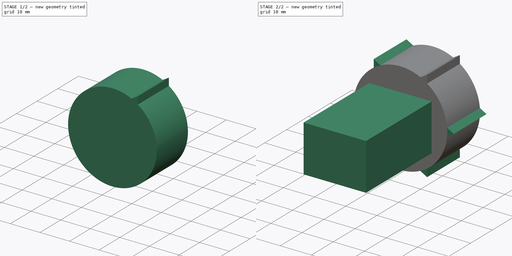
[diagram: build sequence overview — one tinted view per stage of 2, left to right]
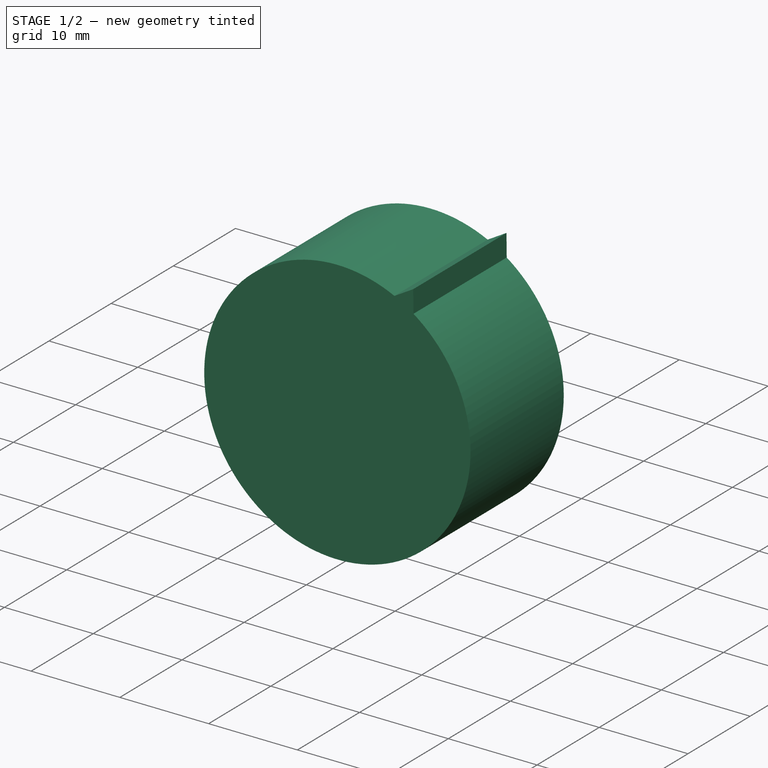
[diagram: stage 1 of 2 — iso view after this stage's code; geometry added in this stage tinted green]
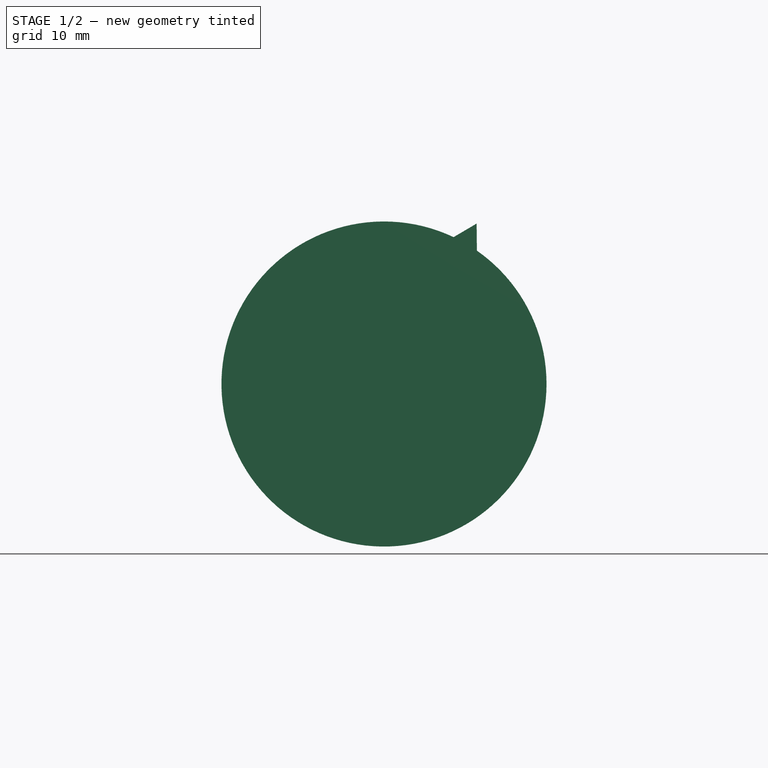
[diagram: stage 1 of 2 — front view after this stage's code; geometry added in this stage tinted green]
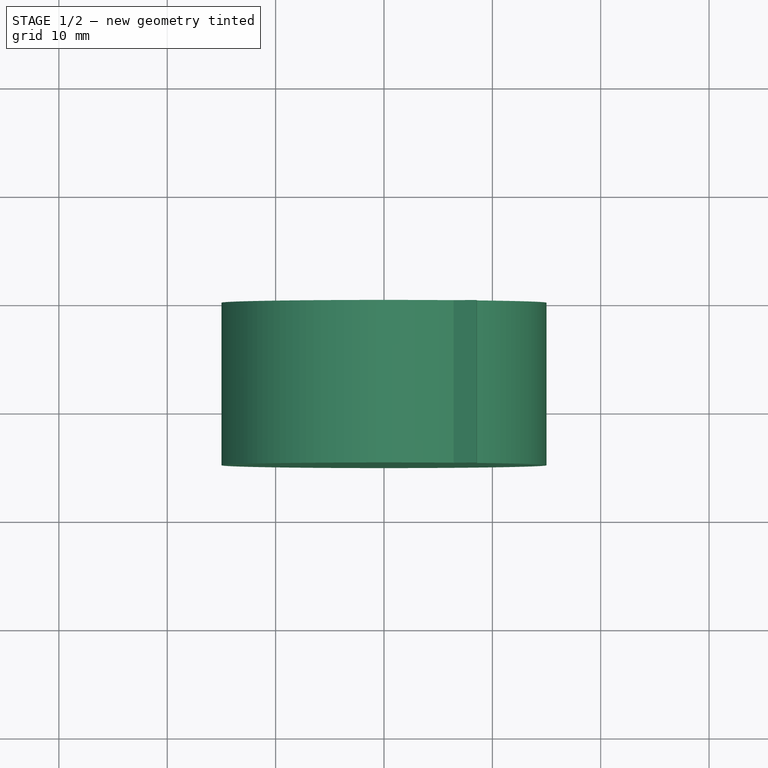
[diagram: stage 1 of 2 — top view after this stage's code; geometry added in this stage tinted green]
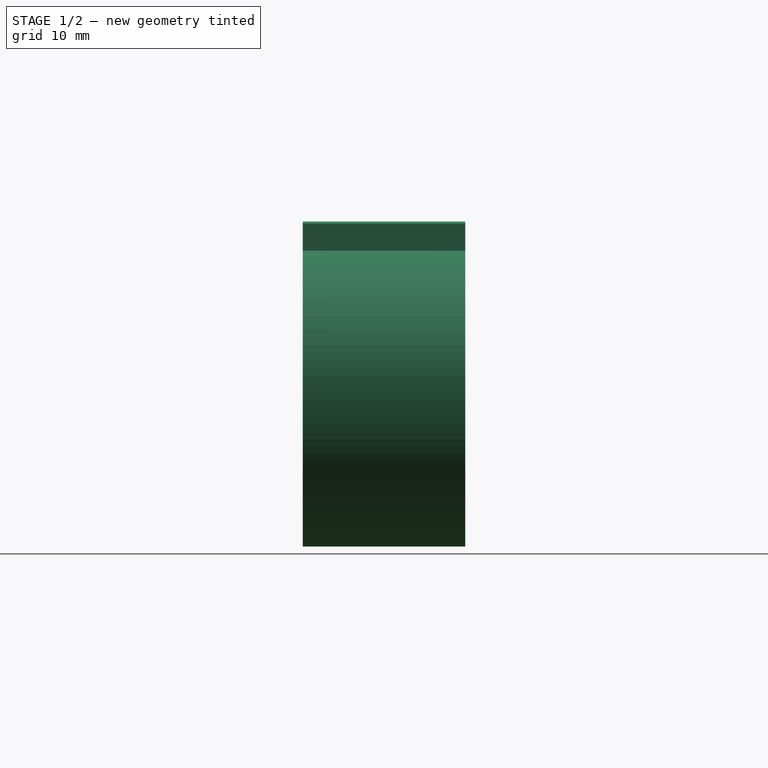
[diagram: stage 1 of 2 — right view after this stage's code; geometry added in this stage tinted green]
FCSTD DOCUMENT  (FreeCAD 0.21R33771 (Git))
Label: hexter
License: All rights reserved
LicenseURL: http://en.wikipedia.org/wiki/All_rights_reserved
objects: Sketcher::SketchObject×3, PartDesign::Pad×3, PartDesign::PolarPattern×1, PartDesign::Body×1
note: 11 computed .brp shape members not serialized (recipe doc carries the construction recipe); baked Part::Feature solids carry a one-line shape summary decoded from their .brp

FEATURE [Sketcher::SketchObject] Sketch
  FullyConstrained = true
  MapMode = 5
  Placement = pos=(0,0,0) rot=(1,0,0;1.5708rad)
  Support = -> [XZ_Plane]
  sketch-geometry (1):
    g0: Circle CenterX=0 CenterY=0 CenterZ=0 NormalX=0 NormalY=0 NormalZ=1 AngleXU=0 Radius=15
  constraints (2):
    c: Coincident(g0,g-1)
    c: Radius(g0) = 15
FEATURE [PartDesign::Pad] Pad
  Direction = (0,-1,2e-16)
  Length = 15
  Length2 = 10
  Placement = pos=(0,0,0) rot=(1,0,0;1.5708rad)
  Profile = -> Sketch
  ReferenceAxis = -> Sketch [N_Axis]
  Type = 0
FEATURE [Sketcher::SketchObject] Sketch001
  ExternalGeometry = -> [Pad]
  FullyConstrained = false
  MapMode = 5
  Placement = pos=(0,-15,3.3e-15) rot=(1,0,0;1.5708rad)
  Support = -> [Pad]
  sketch-geometry (4):
    g0: LineSegment StartX=8.54946 StartY=14.8081 StartZ=0 EndX=5.96574 EndY=13.2835 EndZ=0
    g1: LineSegment StartX=8.57786 StartY=11.8081 StartZ=0 EndX=5.96574 EndY=13.2835 EndZ=0
    g2: LineSegment StartX=8.54946 StartY=14.8081 StartZ=0 EndX=8.57786 EndY=11.8081 EndZ=0
    g3: LineSegment StartX=8.54946 StartY=14.8081 StartZ=0 EndX=0 EndY=0 EndZ=0
  constraints (10):
    c: Coincident(g1,g0)
    c: Coincident(g2,g0)
    c: Coincident(g2,g1)
    c: DistanceY(g2,g2) = 3
    c: Distance(g1) = 3
    c: Distance(g0) = 3
    c: Coincident(g3,g0)
    c: Coincident(g3,g-3)
    c: Angle(g-1,g3) = 1.0472
    c: Distance(g3,g1) = 14.5
FEATURE [PartDesign::Pad] Pad001
  BaseFeature = -> Pad
  Direction = (0,-1,2e-16)
  Length = 15
  Length2 = 10
  Placement = pos=(0,0,0) rot=(1,0,0;1.5708rad)
  Profile = -> Sketch001
  ReferenceAxis = -> Sketch001 [N_Axis]
  Reversed = true
  Type = 0
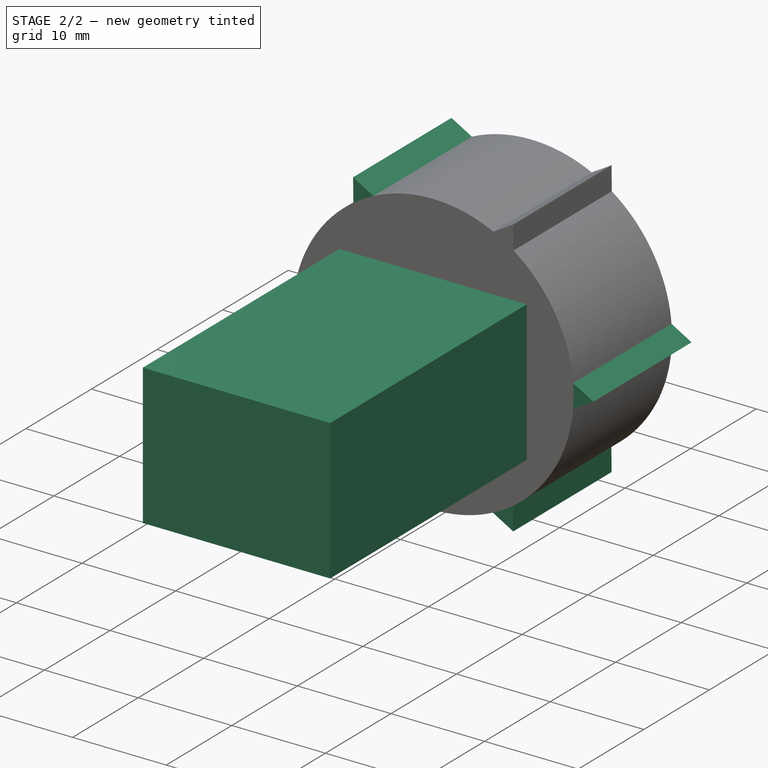
[diagram: stage 2 of 2 — iso view after this stage's code; geometry added in this stage tinted green]
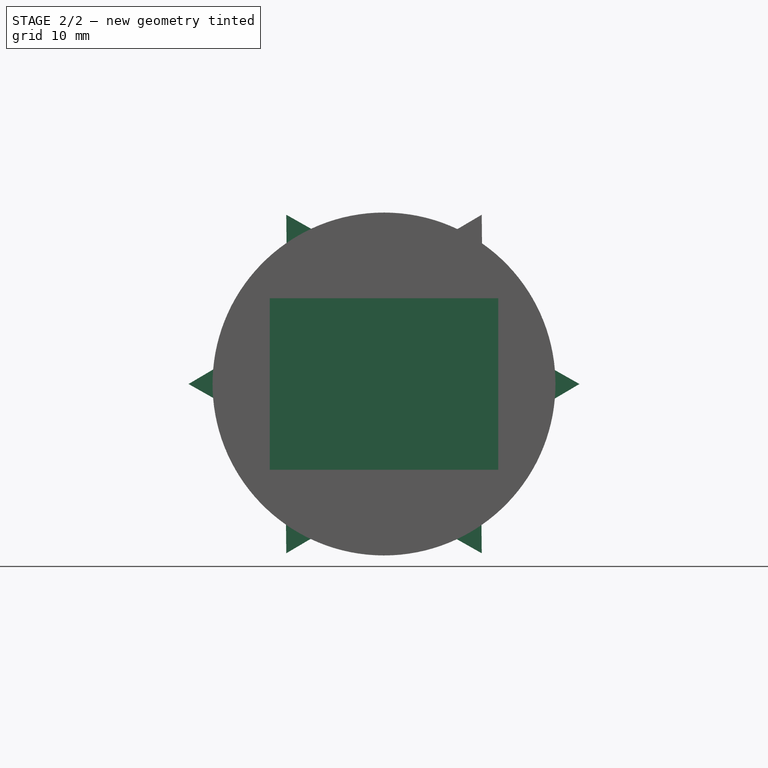
[diagram: stage 2 of 2 — front view after this stage's code; geometry added in this stage tinted green]
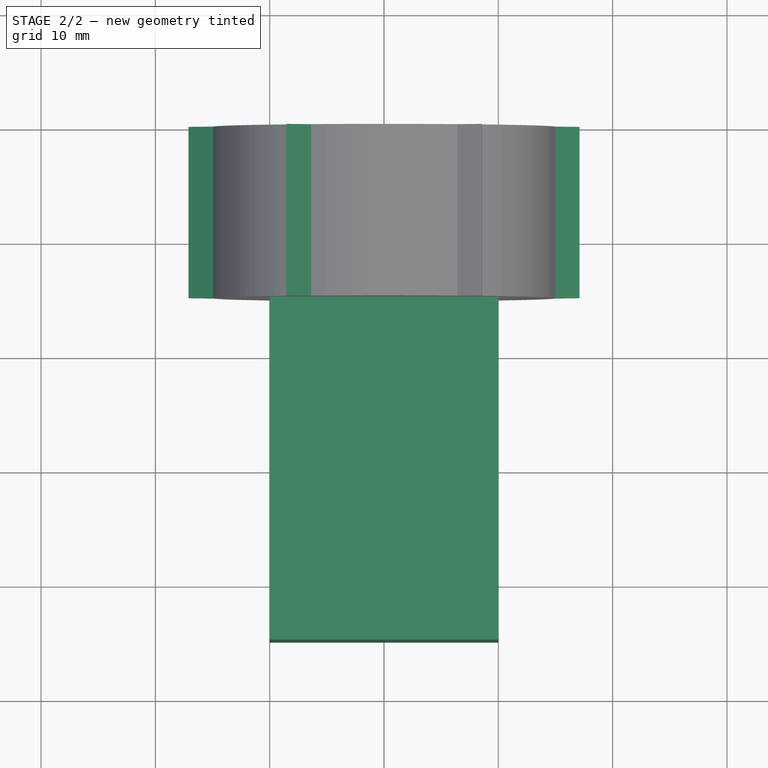
[diagram: stage 2 of 2 — top view after this stage's code; geometry added in this stage tinted green]
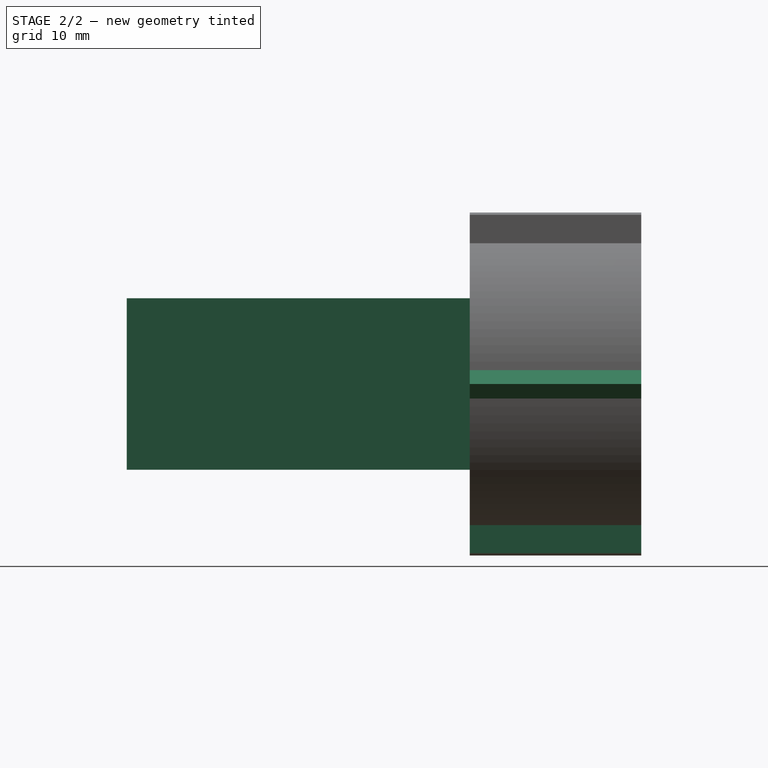
[diagram: stage 2 of 2 — right view after this stage's code; geometry added in this stage tinted green]
FEATURE [PartDesign::PolarPattern] PolarPattern
  Angle = 360
  Axis = -> Sketch001 [N_Axis]
  BaseFeature = -> Pad001
  Occurrences = 6
  Originals = -> [Pad001]
  Placement = pos=(0,0,0) rot=(1,0,0;1.5708rad)
FEATURE [Sketcher::SketchObject] Sketch002
  FullyConstrained = true
  MapMode = 5
  Placement = pos=(0,-15,3.3e-15) rot=(1,0,0;1.5708rad)
  Support = -> [PolarPattern]
  sketch-geometry (4):
    g0: LineSegment StartX=-10 StartY=7.5 StartZ=0 EndX=10 EndY=7.5 EndZ=0
    g1: LineSegment StartX=10 StartY=7.5 StartZ=0 EndX=10 EndY=-7.5 EndZ=0
    g2: LineSegment StartX=10 StartY=-7.5 StartZ=0 EndX=-10 EndY=-7.5 EndZ=0
    g3: LineSegment StartX=-10 StartY=-7.5 StartZ=0 EndX=-10 EndY=7.5 EndZ=0
  constraints (12):
    c: Coincident(g0,g1)
    c: Coincident(g1,g2)
    c: Coincident(g2,g3)
    c: Coincident(g3,g0)
    c: Horizontal(g0)
    c: Horizontal(g2)
    c: Vertical(g1)
    c: Vertical(g3)
    c: Distance(g0) = 20
    c: Distance(g1) = 15
    c: Distance(g-1,g0) = 7.5
    c: Distance(g-1,g1) = 10
FEATURE [PartDesign::Pad] Pad002
  BaseFeature = -> PolarPattern
  Direction = (0,-1,2e-16)
  Length = 30
  Length2 = 10
  Placement = pos=(0,0,0) rot=(1,0,0;1.5708rad)
  Profile = -> Sketch002
  ReferenceAxis = -> Sketch002 [N_Axis]
  Type = 0
FEATURE [PartDesign::Body] Body
  Group = -> [Sketch,Pad,Sketch001,Pad001,PolarPattern,Sketch002,Pad002]
  Origin = -> Origin
  Tip = -> Pad002
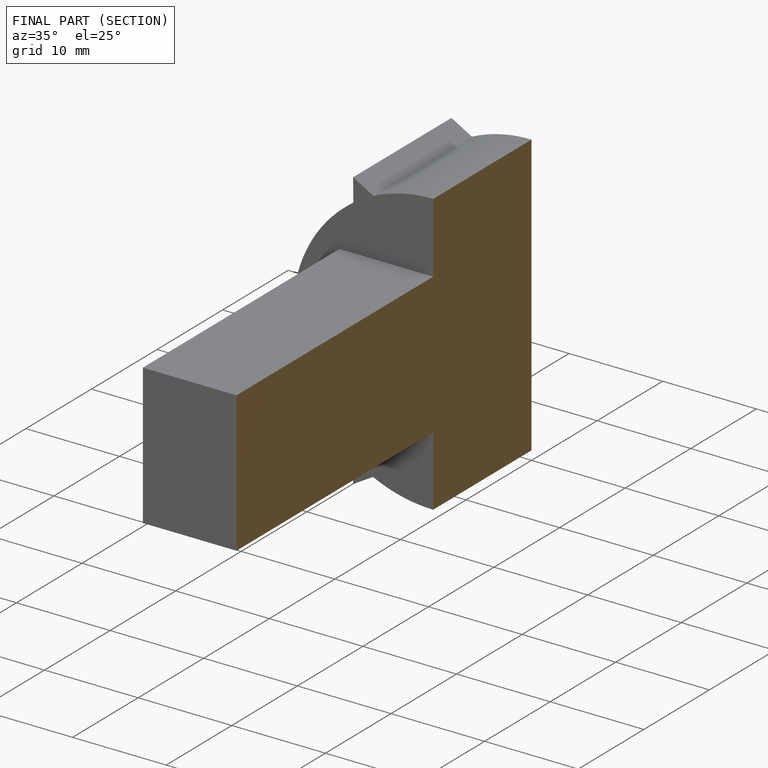
[diagram: finished part — half-section view (interior)]
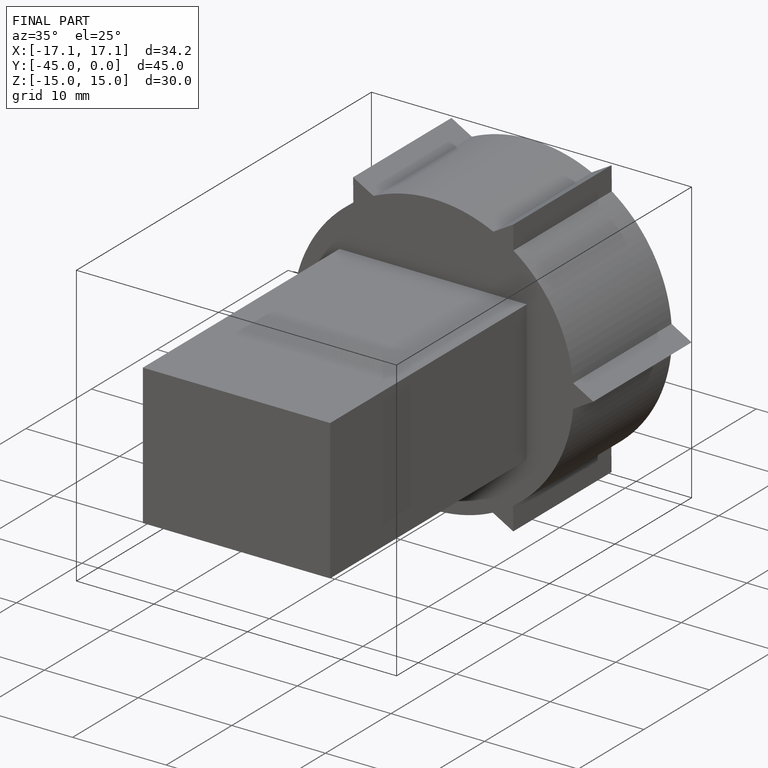
[diagram: finished part — iso view with bounding-box wireframe]
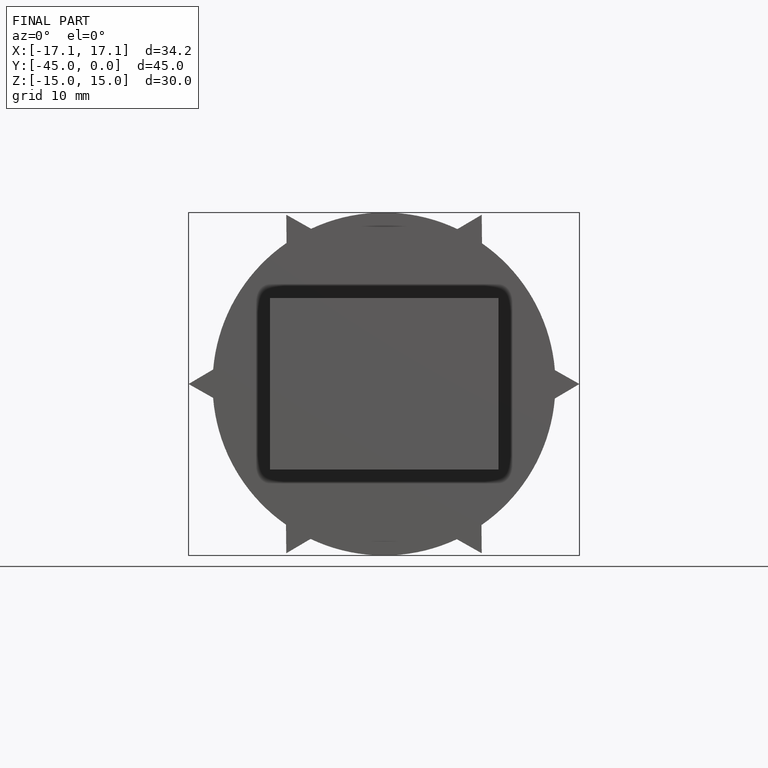
[diagram: finished part — front view with bounding-box wireframe]
